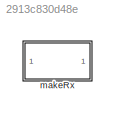
MODEL slx_2913c830d48e
KIND library
CONFIG AbsTol = auto
CONFIG EnableMultiTasking = off
CONFIG FixedStep = auto
CONFIG MaxStep = auto
CONFIG MinStep = auto
CONFIG RelTol = 1e-3
CONFIG SampleTimeConstraint = Unconstrained
CONFIG Solver = VariableStepAuto
CONFIG SolverName = VariableStepAuto
CONFIG StartTime = 0.0
CONFIG StopTime = 10.0
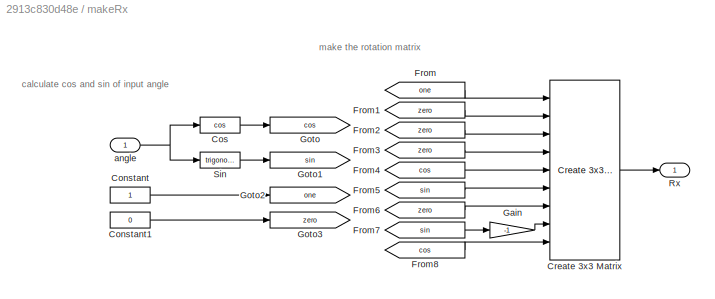
BLOCK [SubSystem] makeRx
  Ports = [1, 1]
  RequestExecContextInheritance = off
BLOCK [Constant] makeRx/Constant
  VectorParams1D = off
BLOCK [Constant] makeRx/Constant1
  Value = 0
  VectorParams1D = off
BLOCK [Trigonometry] makeRx/Cos
  Operator = cos
  Ports = [1, 1]
BLOCK [Reference] makeRx/Create 3x3 Matrix  REF=sharedutil/Create 3x3 Matrix
  Ports = [9, 1]
  SourceBlock = sharedutil/Create 3x3 Matrix
  SourceProductBaseCode = AE,PW,MT,VE,VP
  SourceType = Create 3x3 Matrix
BLOCK [From] makeRx/From
  GotoTag = one
BLOCK [From] makeRx/From1
  GotoTag = zero
BLOCK [From] makeRx/From2
  GotoTag = zero
BLOCK [From] makeRx/From3
  GotoTag = zero
BLOCK [From] makeRx/From4
  GotoTag = cos
BLOCK [From] makeRx/From5
  GotoTag = sin
BLOCK [From] makeRx/From6
  GotoTag = zero
BLOCK [From] makeRx/From7
  GotoTag = sin
BLOCK [From] makeRx/From8
  GotoTag = cos
BLOCK [Gain] makeRx/Gain
  Gain = -1
BLOCK [Goto] makeRx/Goto
  GotoTag = cos
BLOCK [Goto] makeRx/Goto1
  GotoTag = sin
BLOCK [Goto] makeRx/Goto2
  GotoTag = one
BLOCK [Goto] makeRx/Goto3
  GotoTag = zero
BLOCK [Outport] makeRx/Rx
BLOCK [Trigonometry] makeRx/Sin
  Ports = [1, 1]
BLOCK [Inport] makeRx/angle
ANNOTATION makeRx: calculate cos and sin of input angle
ANNOTATION makeRx: make the rotation matrix
LINE makeRx/Constant1:1 -> makeRx/Goto3:1
LINE makeRx/Constant:1 -> makeRx/Goto2:1
LINE makeRx/Cos:1 -> makeRx/Goto:1
LINE makeRx/Create 3x3 Matrix:1 -> makeRx/Rx:1
LINE makeRx/From1:1 -> makeRx/Create 3x3 Matrix:2
LINE makeRx/From2:1 -> makeRx/Create 3x3 Matrix:3
LINE makeRx/From3:1 -> makeRx/Create 3x3 Matrix:4
LINE makeRx/From4:1 -> makeRx/Create 3x3 Matrix:5
LINE makeRx/From5:1 -> makeRx/Create 3x3 Matrix:6
LINE makeRx/From6:1 -> makeRx/Create 3x3 Matrix:7
LINE makeRx/From7:1 -> makeRx/Gain:1
LINE makeRx/From8:1 -> makeRx/Create 3x3 Matrix:9
LINE makeRx/From:1 -> makeRx/Create 3x3 Matrix:1
LINE makeRx/Gain:1 -> makeRx/Create 3x3 Matrix:8
LINE makeRx/Sin:1 -> makeRx/Goto1:1
NET makeRx/angle:1 -> makeRx/Cos:1, makeRx/Sin:1
note: NET lines group one-source signal fan-out (src -> all destinations, sorted); 1:1 wires keep LINE
